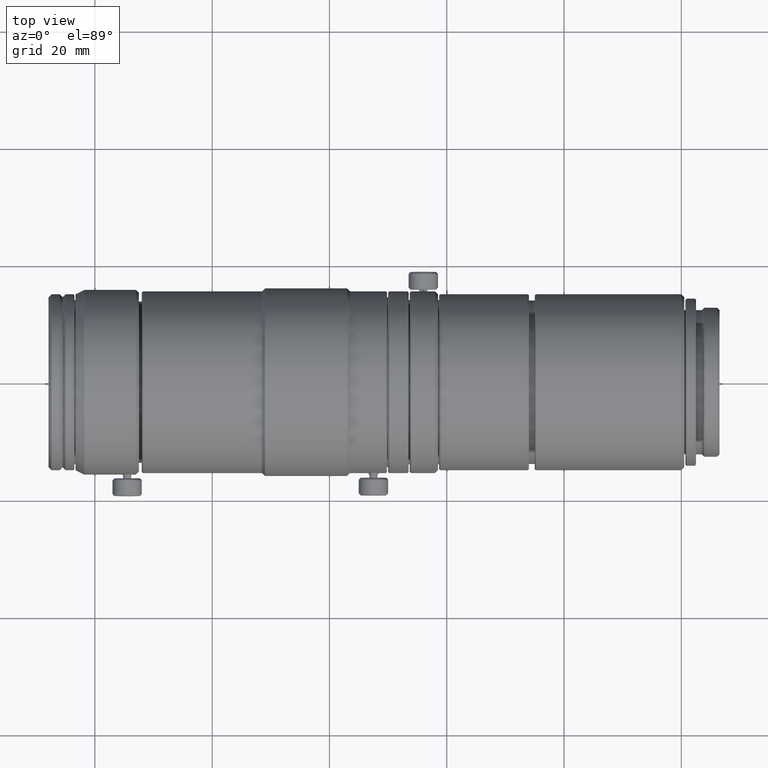
[diagram: clean part render]
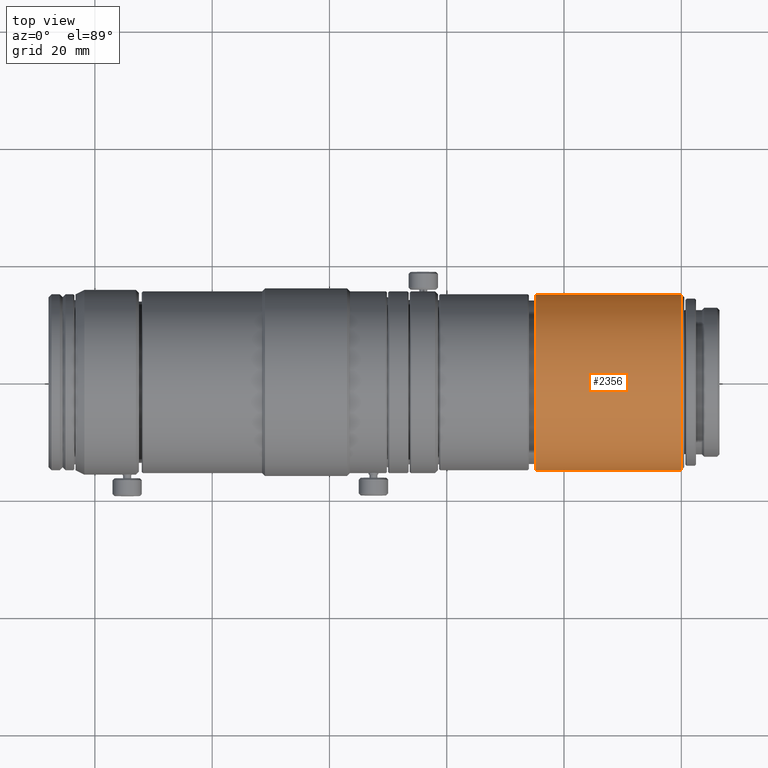
[diagram: same view with one face highlighted and labeled with its STEP entity id]
A machine part, top view. The second image highlights one B-rep face of the part: STEP entity #2356.
In plain terms, the highlighted cylindrical surface (partial cylindrical patch) has radius 14.9998 mm, axis along (1, -0, -0).
Its self-contained STEP definition (entity closure, byte-faithful):
#17 = DIRECTION ( 'NONE',  ( 1.000000000000000000, -5.556191259460425289E-17, -0.0000000000000000000 ) ) ;
#43 = VERTEX_POINT ( 'NONE', #1913 ) ;
#68 = ORIENTED_EDGE ( 'NONE', *, *, #2232, .F. ) ;
#332 = CARTESIAN_POINT ( 'NONE',  ( -8.334194384969924326E-16, -14.99983351145345090, 1.836949809754467473E-15 ) ) ;
#344 = DIRECTION ( 'NONE',  ( 0.0000000000000000000, 1.000000000000000000, 0.0000000000000000000 ) ) ;
#598 = DIRECTION ( 'NONE',  ( 1.000000000000000000, -5.556191259460425289E-17, -0.0000000000000000000 ) ) ;
#823 = EDGE_CURVE ( 'NONE', #43, #1413, #3135, .T. ) ;
#1055 = DIRECTION ( 'NONE',  ( 1.000000000000000000, -5.556191259460425289E-17, -0.0000000000000000000 ) ) ;
#1182 = DIRECTION ( 'NONE',  ( 1.000000000000000000, -5.556191259460425289E-17, -0.0000000000000000000 ) ) ;
#1269 = DIRECTION ( 'NONE',  ( 0.0000000000000000000, 1.000000000000000000, 0.0000000000000000000 ) ) ;
#1413 = VERTEX_POINT ( 'NONE', #3137 ) ;
#1521 = CARTESIAN_POINT ( 'NONE',  ( 0.0000000000000000000, 0.0000000000000000000, 0.0000000000000000000 ) ) ;
#1522 = CARTESIAN_POINT ( 'NONE',  ( 8.334194384969924326E-16, 14.99983351145345090, 0.0000000000000000000 ) ) ;
#1559 = DIRECTION ( 'NONE',  ( 1.000000000000000000, -5.556191259460425289E-17, -0.0000000000000000000 ) ) ;
#1913 = CARTESIAN_POINT ( 'NONE',  ( -44.80000037005257951, -14.99983351145343491, 1.836949809754466684E-15 ) ) ;
#2173 = VERTEX_POINT ( 'NONE', #2843 ) ;
#2201 = FACE_OUTER_BOUND ( 'NONE', #3922, .T. ) ;
#2232 = EDGE_CURVE ( 'NONE', #4331, #1413, #2909, .T. ) ;
#2301 = CIRCLE ( 'NONE', #3703, 14.99983351145343669 ) ;
#2324 = CARTESIAN_POINT ( 'NONE',  ( -20.00000037005256104, 14.99983351145346688, 1.836949809754469050E-15 ) ) ;
#2356 = ADVANCED_FACE ( 'NONE', ( #2201 ), #3601, .T. ) ;
#2369 = VECTOR ( 'NONE', #1182, 1000.000000000000000 ) ;
#2843 = CARTESIAN_POINT ( 'NONE',  ( -44.80000037005257951, 14.99983351145343846, 0.0000000000000000000 ) ) ;
#2909 = CIRCLE ( 'NONE', #4078, 14.99983351145346511 ) ;
#3035 = AXIS2_PLACEMENT_3D ( 'NONE', #1521, #1559, #3288 ) ;
#3135 = LINE ( 'NONE', #332, #3547 ) ;
#3137 = CARTESIAN_POINT ( 'NONE',  ( -20.00000037005256104, -14.99983351145346333, 0.0000000000000000000 ) ) ;
#3264 = LINE ( 'NONE', #1522, #2369 ) ;
#3288 = DIRECTION ( 'NONE',  ( 5.556191259460425289E-17, 1.000000000000000000, 0.0000000000000000000 ) ) ;
#3423 = ORIENTED_EDGE ( 'NONE', *, *, #3647, .F. ) ;
#3547 = VECTOR ( 'NONE', #1055, 1000.000000000000000 ) ;
#3601 = CYLINDRICAL_SURFACE ( 'NONE', #3035, 14.99983351145345090 ) ;
#3603 = ORIENTED_EDGE ( 'NONE', *, *, #3731, .T. ) ;
#3647 = EDGE_CURVE ( 'NONE', #2173, #4331, #3264, .T. ) ;
#3703 = AXIS2_PLACEMENT_3D ( 'NONE', #3805, #598, #1269 ) ;
#3731 = EDGE_CURVE ( 'NONE', #2173, #43, #2301, .T. ) ;
#3805 = CARTESIAN_POINT ( 'NONE',  ( -44.80000037005257951, 2.489173704799099511E-15, 0.0000000000000000000 ) ) ;
#3922 = EDGE_LOOP ( 'NONE', ( #3603, #4088, #68, #3423 ) ) ;
#4078 = AXIS2_PLACEMENT_3D ( 'NONE', #4243, #17, #344 ) ;
#4088 = ORIENTED_EDGE ( 'NONE', *, *, #823, .T. ) ;
#4243 = CARTESIAN_POINT ( 'NONE',  ( -20.00000037005256104, 1.111238272452913093E-15, 0.0000000000000000000 ) ) ;
#4331 = VERTEX_POINT ( 'NONE', #2324 ) ;